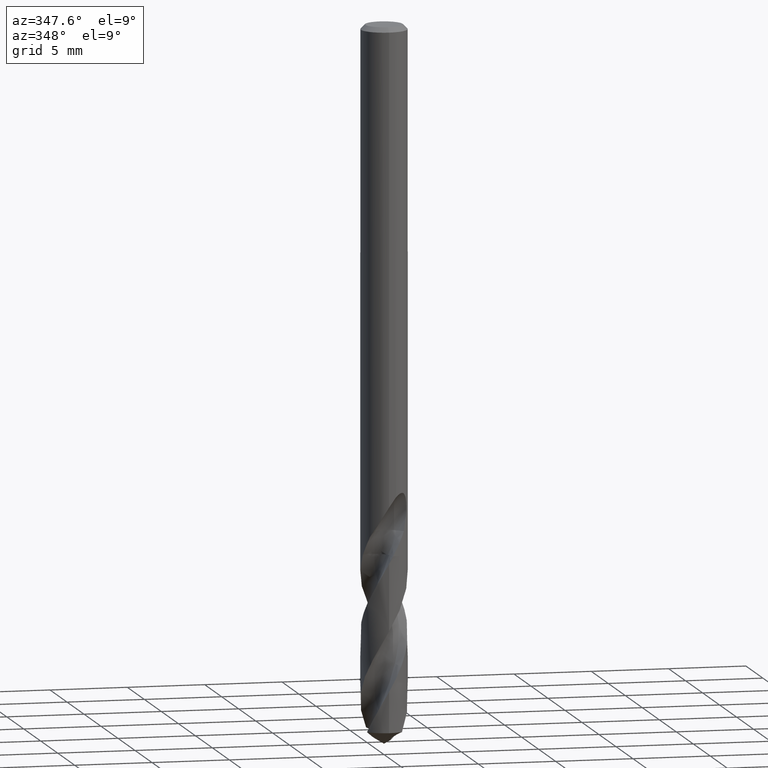
[diagram: clean part render]
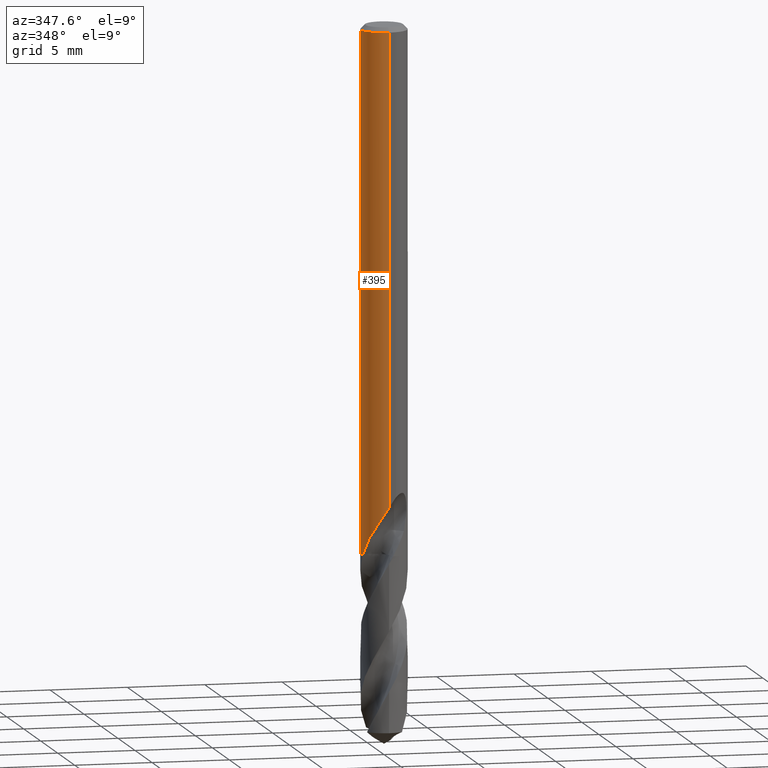
[diagram: same view with one face highlighted and labeled with its STEP entity id]
A machine part, auxiliary view. The second image highlights one B-rep face of the part: STEP entity #395.
In plain terms, the highlighted cylindrical surface (edge-blend (fillet) strip) has radius 1.5 mm, axis along (-0, -0, 1).
Its self-contained STEP definition (entity closure, byte-faithful):
#271=EDGE_CURVE('',#481,#519,#762,.T.);
#285=EDGE_CURVE('',#519,#681,#777,.T.);
#287=EDGE_CURVE('',#393,#661,#779,.T.);
#291=VERTEX_POINT('',#783);
#297=EDGE_CURVE('',#481,#695,#789,.T.);
#301=VERTEX_POINT('',#793);
#323=VERTEX_POINT('',#818);
#333=VERTEX_POINT('',#829);
#341=EDGE_CURVE('',#661,#695,#838,.T.);
#347=VERTEX_POINT('',#844);
#349=EDGE_CURVE('',#533,#323,#846,.T.);
#357=VERTEX_POINT('',#856);
#393=VERTEX_POINT('',#897);
#395=ADVANCED_FACE('',(#899),#900,.T.);
#405=VERTEX_POINT('',#911);
#437=VERTEX_POINT('',#947);
#441=EDGE_CURVE('',#347,#405,#951,.T.);
#449=EDGE_CURVE('',#467,#301,#959,.T.);
#467=VERTEX_POINT('',#977);
#481=VERTEX_POINT('',#993);
#483=EDGE_CURVE('',#405,#393,#995,.T.);
#491=EDGE_CURVE('',#609,#467,#1005,.T.);
#495=EDGE_CURVE('',#291,#437,#1009,.T.);
#513=EDGE_CURVE('',#681,#609,#1028,.T.);
#519=VERTEX_POINT('',#1034);
#533=VERTEX_POINT('',#1049);
#539=EDGE_CURVE('',#301,#357,#1055,.T.);
#609=VERTEX_POINT('',#1132);
#645=EDGE_CURVE('',#357,#533,#1171,.T.);
#649=EDGE_CURVE('',#323,#333,#1176,.T.);
#655=EDGE_CURVE('',#437,#347,#1182,.T.);
#661=VERTEX_POINT('',#1189);
#679=EDGE_CURVE('',#333,#291,#1208,.T.);
#681=VERTEX_POINT('',#1210);
#695=VERTEX_POINT('',#1225);
#762=B_SPLINE_CURVE_WITH_KNOTS('',3,(#1289,#1290,#1291,#1292,#1293,#1294,#1295,#1296),.UNSPECIFIED.,.F.,.F.,(4,2,2,4),(0.0,0.898366519582593,1.48809988664634,2.57980706595048),.UNSPECIFIED.);
#777=B_SPLINE_CURVE_WITH_KNOTS('',3,(#1358,#1359,#1360,#1361,#1362,#1363,#1364,#1365,#1366,#1367,#1368,#1369,#1370,#1371,#1372,#1373,#1374,#1375,#1376,#1377,#1378,#1379,#1380,#1381,#1382,#1383,#1384,#1385),.UNSPECIFIED.,.F.,.F.,(4,2,2,2,2,2,2,2,2,2,2,2,2,4),(0.0,0.734919424519649,1.13620153114086,1.49966231498588,1.92191661966289,2.4291402290594,2.8687597418493,3.06797982700542,3.21358544477763,3.35137095256146,3.52616008675841,3.78188368372509,4.14542484132772,4.55882766017349),.UNSPECIFIED.);
#779=B_SPLINE_CURVE_WITH_KNOTS('',3,(#1388,#1389,#1390,#1391),.UNSPECIFIED.,.F.,.F.,(4,4),(0.0,0.862079850826823),.UNSPECIFIED.);
#783=CARTESIAN_POINT('',(-1.59274549940715E-015,1.5,-21.7128911336578));
#789=CIRCLE('',#1471,1.5);
#793=CARTESIAN_POINT('',(1.07028167063725E-015,1.5,-21.0232688117743));
#818=CARTESIAN_POINT('',(-1.0350734039088,1.08564407082647,-20.3171221986971));
#829=CARTESIAN_POINT('',(1.17859584229481E-016,1.5,-21.5000801551881));
#838=B_SPLINE_CURVE_WITH_KNOTS('',3,(#1737,#1738,#1739,#1740,#1741,#1742,#1743,#1744),.UNSPECIFIED.,.F.,.F.,(4,2,2,4),(0.0,0.363131137481832,0.689911434348051,1.59394428836357),.UNSPECIFIED.);
#844=CARTESIAN_POINT('',(-1.44945831354929E-017,1.5,-23.0310253601033));
#846=CIRCLE('',#1753,1.5);
#856=CARTESIAN_POINT('',(-0.486378944383048,1.4189557859429,-20.6432837483006));
#897=CARTESIAN_POINT('',(-1.22046324492086,0.872049005387456,-31.451629657912));
#899=FACE_OUTER_BOUND('',#2181,.T.);
#900=CYLINDRICAL_SURFACE('',#2182,1.5);
#911=CARTESIAN_POINT('',(-4.4379247726798E-013,1.5,-30.6785266610978));
#947=CARTESIAN_POINT('',(-1.337052752443,0.679919066642939,-22.3720803908795));
#951=LINE('',#2779,#2780);
#959=LINE('',#2790,#2791);
#977=CARTESIAN_POINT('',(0.0,1.5,-0.300000000000001));
#993=CARTESIAN_POINT('',(-1.44637069140941,-0.397507010041174,-33.8));
#995=B_SPLINE_CURVE_WITH_KNOTS('',3,(#2957,#2958,#2959,#2960,#2961,#2962,#2963,#2964,#2965,#2966,#2967,#2968,#2969,#2970,#2971,#2972,#2973,#2974,#2975,#2976,#2977,#2978,#2979,#2980,#2981,#2982,#2983,#2984),.UNSPECIFIED.,.F.,.F.,(4,2,2,2,2,2,2,2,2,2,2,2,2,4),(0.0,0.734919424519641,1.13620153114084,1.49966231498582,1.92191661966277,2.42914022905919,2.868759741849,3.06797982700512,3.21358544477729,3.35137095256106,3.52616008675795,3.78188368372415,4.14542484132553,4.55882766016978),.UNSPECIFIED.);
#1005=CIRCLE('',#3340,1.5);
#1009=ELLIPSE('',#3359,1.67239264806429,1.5);
#1028=LINE('',#3399,#3400);
#1034=CARTESIAN_POINT('',(-0.955826450193441,-1.15602586351284,-32.273));
#1049=CARTESIAN_POINT('',(-0.562333990228013,1.39060435905913,-20.3171221986971));
#1055=B_SPLINE_CURVE_WITH_KNOTS('',3,(#3720,#3721,#3722,#3723,#3724,#3725,#3726,#3727,#3728,#3729,#3730,#3731,#3732,#3733,#3734,#3735,#3736,#3737,#3738,#3739,#3740,#3741,#3742,#3743,#3744,#3745,#3746),.UNSPECIFIED.,.F.,.F.,(4,2,3,2,2,2,2,2,2,2,2,2,4),(-0.555570148161677,-0.277785074080839,0.0,0.277785074080839,0.555570148161677,0.838954672448038,1.1223391967344,1.3938603912747,1.66538158581499,1.94034344792182,2.21530531002864,2.49026717213547,2.76522903424229),.UNSPECIFIED.);
#1132=CARTESIAN_POINT('',(1.83690953073357E-016,-1.5,-0.300000000000001));
#1171=B_SPLINE_CURVE_WITH_KNOTS('',3,(#5048,#5049,#5050,#5051,#5052,#5053,#5054,#5055,#5056,#5057,#5058,#5059,#5060,#5061,#5062,#5063,#5064,#5065,#5066,#5067,#5068,#5069,#5070,#5071,#5072,#5073,#5074),.UNSPECIFIED.,.F.,.F.,(4,2,3,2,2,2,2,2,2,2,2,2,4),(-0.555570148161677,-0.277785074080839,0.0,0.277785074080839,0.555570148161677,0.838954672448038,1.1223391967344,1.3938603912747,1.66538158581499,1.94034344792182,2.21530531002864,2.49026717213547,2.76522903424229),.UNSPECIFIED.);
#1176=B_SPLINE_CURVE_WITH_KNOTS('',3,(#5231,#5232,#5233,#5234,#5235,#5236,#5237,#5238,#5239,#5240,#5241,#5242,#5243,#5244,#5245,#5246,#5247,#5248,#5249,#5250),.UNSPECIFIED.,.F.,.F.,(4,2,2,2,2,2,2,2,2,4),(3.61773460345543,3.85395724262809,4.09017988180075,4.32640252097341,4.79884779931873,5.25384789829177,5.48134794777829,5.7088479972648,5.95533017953676,6.20181236180872),.UNSPECIFIED.);
#1182=B_SPLINE_CURVE_WITH_KNOTS('',3,(#5259,#5260,#5261,#5262,#5263,#5264,#5265,#5266,#5267,#5268,#5269,#5270,#5271,#5272,#5273,#5274),.UNSPECIFIED.,.F.,.F.,(4,2,2,2,2,2,2,4),(0.656882363151586,0.985323544727379,1.31376472630317,1.61579827194463,1.91783181758608,2.21986536322754,2.52189890886899,2.82957976825427),.UNSPECIFIED.);
#1189=CARTESIAN_POINT('',(-1.04261601392358,1.07840245155049,-32.273));
#1208=LINE('',#5442,#5443);
#1210=CARTESIAN_POINT('',(4.44902700292606E-013,-1.5,-30.6785266610978));
#1225=CARTESIAN_POINT('',(-0.274332177781978,1.47470059884486,-33.8));
#1289=CARTESIAN_POINT('',(-1.44637069140941,-0.397507010041172,-33.8));
#1290=CARTESIAN_POINT('',(-1.4067482063125,-0.541677552238742,-33.5405418842532));
#1291=CARTESIAN_POINT('',(-1.34660783622496,-0.676830825675384,-33.2953837203971));
#1292=CARTESIAN_POINT('',(-1.21710188263983,-0.881990667521875,-32.8619443830135));
#1293=CARTESIAN_POINT('',(-1.17348785645097,-0.93523493846504,-32.7289072522091));
#1294=CARTESIAN_POINT('',(-1.09684883912332,-1.0260989460255,-32.5167383413509));
#1295=CARTESIAN_POINT('',(-1.03497201030521,-1.09058665306098,-32.3921053473867));
#1296=CARTESIAN_POINT('',(-0.955826450193442,-1.15602586351284,-32.273));
#1358=CARTESIAN_POINT('',(-0.955826450193442,-1.15602586351284,-32.273));
#1359=CARTESIAN_POINT('',(-0.856880714080365,-1.23783627510982,-32.0643648209938));
#1360=CARTESIAN_POINT('',(-0.743115395704618,-1.31056007068985,-31.8698497401907));
#1361=CARTESIAN_POINT('',(-0.544742531155021,-1.39969826187234,-31.5448988086608));
#1362=CARTESIAN_POINT('',(-0.473358796381456,-1.42533989743551,-31.4305703465191));
#1363=CARTESIAN_POINT('',(-0.33516888827982,-1.46366222849664,-31.2092599492561));
#1364=CARTESIAN_POINT('',(-0.268979746686005,-1.47720142054802,-31.103309612104));
#1365=CARTESIAN_POINT('',(-0.125708112629072,-1.49674184821654,-30.8749583743827));
#1366=CARTESIAN_POINT('',(-0.0474288869669631,-1.50132942011774,-30.75077006207));
#1367=CARTESIAN_POINT('',(0.12640913429535,-1.49767287657042,-30.4850903627386));
#1368=CARTESIAN_POINT('',(0.229477470973733,-1.48636306121171,-30.3339157281609));
#1369=CARTESIAN_POINT('',(0.428231458063886,-1.44068852394289,-30.0846391386798));
#1370=CARTESIAN_POINT('',(0.538194148392213,-1.40589025977158,-29.9630018423218));
#1371=CARTESIAN_POINT('',(0.704621514688883,-1.32545512693772,-29.849100888941));
#1372=CARTESIAN_POINT('',(0.759710000846592,-1.29508905514035,-29.8209514377899));
#1373=CARTESIAN_POINT('',(0.856237705091836,-1.23256455462362,-29.799327587984));
#1374=CARTESIAN_POINT('',(0.895829141852265,-1.20409042289795,-29.7989238040765));
#1375=CARTESIAN_POINT('',(0.969570334630121,-1.14543964779932,-29.8178491174815));
#1376=CARTESIAN_POINT('',(1.00182105452755,-1.11711249050342,-29.8355932949545));
#1377=CARTESIAN_POINT('',(1.06745091261156,-1.0550357310721,-29.8911127993405));
#1378=CARTESIAN_POINT('',(1.09781425610002,-1.02286599079868,-29.9321039737442));
#1379=CARTESIAN_POINT('',(1.16000820300644,-0.952620997760338,-30.0443505497179));
#1380=CARTESIAN_POINT('',(1.1897356693544,-0.914367567158807,-30.1276043439943));
#1381=CARTESIAN_POINT('',(1.24563707432167,-0.837555141191258,-30.3605391888482));
#1382=CARTESIAN_POINT('',(1.2658467294698,-0.804836722556952,-30.5264322515252));
#1383=CARTESIAN_POINT('',(1.27876869102085,-0.784167622639195,-30.923052096235));
#1384=CARTESIAN_POINT('',(1.26961263652255,-0.803262703712318,-31.1720834470048));
#1385=CARTESIAN_POINT('',(1.22046324492086,-0.872049005387455,-31.451629657912));
#1388=CARTESIAN_POINT('',(-1.22046324497347,0.872049005313814,-31.4516296579409));
#1389=CARTESIAN_POINT('',(-1.17210448132609,0.939728795376467,-31.7266871374211));
#1390=CARTESIAN_POINT('',(-1.11381924545134,1.0095620763017,-32.0033814725976));
#1391=CARTESIAN_POINT('',(-1.04261601392358,1.07840245155049,-32.273));
#1471=AXIS2_PLACEMENT_3D('',#6335,#6336,#6337);
#1737=CARTESIAN_POINT('',(-1.04261601392358,1.07840245155049,-32.273));
#1738=CARTESIAN_POINT('',(-1.0013948940739,1.11825566182959,-32.3796026324398));
#1739=CARTESIAN_POINT('',(-0.956589991657523,1.15716787123499,-32.4869305648465));
#1740=CARTESIAN_POINT('',(-0.859583482773508,1.23062504587335,-32.6954116416983));
#1741=CARTESIAN_POINT('',(-0.81086418228851,1.26348538754773,-32.7938125482617));
#1742=CARTESIAN_POINT('',(-0.607898890632892,1.38212774355518,-33.1989850731417));
#1743=CARTESIAN_POINT('',(-0.444564646402217,1.44303298856359,-33.4999363269994));
#1744=CARTESIAN_POINT('',(-0.27433217778195,1.47470059884487,-33.8));
#1753=AXIS2_PLACEMENT_3D('',#6388,#6389,#6390);
#2181=EDGE_LOOP('',(#6452,#6453,#6454,#6455,#6456,#6457,#6458,#6459,#6460,#6461,#6462,#6463,#6464,#6465,#6466,#6467,#6468));
#2182=AXIS2_PLACEMENT_3D('',#6469,#6470,#6471);
#2779=CARTESIAN_POINT('',(-1.83690953073357E-016,1.5,-29.4));
#2780=VECTOR('',#6526,1.0);
#2790=CARTESIAN_POINT('',(-1.83690953073357E-016,1.5,-29.4));
#2791=VECTOR('',#6530,1.0);
#2957=CARTESIAN_POINT('',(0.95582645019344,1.15602586351284,-32.273));
#2958=CARTESIAN_POINT('',(0.856880714080364,1.23783627510982,-32.0643648209938));
#2959=CARTESIAN_POINT('',(0.743115395704616,1.31056007068985,-31.8698497401907));
#2960=CARTESIAN_POINT('',(0.544742531155022,1.39969826187234,-31.5448988086608));
#2961=CARTESIAN_POINT('',(0.473358796381459,1.42533989743551,-31.4305703465191));
#2962=CARTESIAN_POINT('',(0.335168888279825,1.46366222849664,-31.2092599492562));
#2963=CARTESIAN_POINT('',(0.268979746686013,1.47720142054802,-31.103309612104));
#2964=CARTESIAN_POINT('',(0.125708112629069,1.49674184821654,-30.8749583743827));
#2965=CARTESIAN_POINT('',(0.0474288869669627,1.50132942011774,-30.75077006207));
#2966=CARTESIAN_POINT('',(-0.126409134295348,1.49767287657042,-30.4850903627386));
#2967=CARTESIAN_POINT('',(-0.22947747097373,1.48636306121171,-30.3339157281609));
#2968=CARTESIAN_POINT('',(-0.428231458063881,1.44068852394289,-30.0846391386798));
#2969=CARTESIAN_POINT('',(-0.538194148392212,1.40589025977158,-29.9630018423218));
#2970=CARTESIAN_POINT('',(-0.704621514688896,1.32545512693771,-29.849100888941));
#2971=CARTESIAN_POINT('',(-0.759710000846596,1.29508905514035,-29.8209514377899));
#2972=CARTESIAN_POINT('',(-0.85623770509182,1.23256455462363,-29.799327587984));
#2973=CARTESIAN_POINT('',(-0.895829141852259,1.20409042289796,-29.7989238040765));
#2974=CARTESIAN_POINT('',(-0.969570334630121,1.14543964779932,-29.8178491174815));
#2975=CARTESIAN_POINT('',(-1.00182105452755,1.11711249050342,-29.8355932949545));
#2976=CARTESIAN_POINT('',(-1.06745091261156,1.0550357310721,-29.8911127993405));
#2977=CARTESIAN_POINT('',(-1.09781425610002,1.02286599079868,-29.9321039737442));
#2978=CARTESIAN_POINT('',(-1.16000820300638,0.952620997760409,-30.0443505497178));
#2979=CARTESIAN_POINT('',(-1.18973566935435,0.914367567158863,-30.1276043439941));
#2980=CARTESIAN_POINT('',(-1.24563707432168,0.837555141191247,-30.3605391888482));
#2981=CARTESIAN_POINT('',(-1.26584672946981,0.804836722556951,-30.5264322515253));
#2982=CARTESIAN_POINT('',(-1.27876869102085,0.784167622639202,-30.9230520962349));
#2983=CARTESIAN_POINT('',(-1.26961263652257,0.803262703712296,-31.1720834470047));
#2984=CARTESIAN_POINT('',(-1.22046324492086,0.872049005387457,-31.451629657912));
#3340=AXIS2_PLACEMENT_3D('',#6570,#6571,#6572);
#3359=AXIS2_PLACEMENT_3D('',#6573,#6574,#6575);
#3399=CARTESIAN_POINT('',(1.83690953073357E-016,-1.5,-29.4));
#3400=VECTOR('',#6605,1.0);
#3720=CARTESIAN_POINT('',(0.668140181180239,1.34297754943723,-19.816635075886));
#3721=CARTESIAN_POINT('',(0.72954561541178,1.31242794124006,-19.8788438588981));
#3722=CARTESIAN_POINT('',(0.783560352001634,1.27981669553828,-19.9575082882911));
#3723=CARTESIAN_POINT('',(0.856513351014311,1.23218614058296,-20.132478185051));
#3724=CARTESIAN_POINT('',(0.875400981188567,1.21806121444453,-20.2290469878932));
#3725=CARTESIAN_POINT('',(0.875400981188567,1.21806121444453,-20.3216420125868));
#3726=CARTESIAN_POINT('',(0.875400981188567,1.21806121444453,-20.4142370372804));
#3727=CARTESIAN_POINT('',(0.856513351014311,1.23218614058296,-20.5108058401225));
#3728=CARTESIAN_POINT('',(0.783560352001634,1.27981669553828,-20.6857757368825));
#3729=CARTESIAN_POINT('',(0.72954561541178,1.31242794124006,-20.7644401662755));
#3730=CARTESIAN_POINT('',(0.60549696744429,1.37414296109493,-20.8901117053001));
#3731=CARTESIAN_POINT('',(0.52594358793364,1.40783000818906,-20.945820443328));
#3732=CARTESIAN_POINT('',(0.348504567526036,1.46189827571051,-21.0210790623878));
#3733=CARTESIAN_POINT('',(0.250472190188546,1.48195366272155,-21.0405166027747));
#3734=CARTESIAN_POINT('',(0.0665134459332673,1.50125530483568,-21.0405166027747));
#3735=CARTESIAN_POINT('',(-0.0296567030390787,1.50231596180862,-21.0225191030741));
#3736=CARTESIAN_POINT('',(-0.206115087377689,1.48840496513252,-20.9496420023373));
#3737=CARTESIAN_POINT('',(-0.286451100530325,1.47383453037813,-20.8948020659474));
#3738=CARTESIAN_POINT('',(-0.413930554322423,1.44326440842702,-20.7683224497832));
#3739=CARTESIAN_POINT('',(-0.469556401354002,1.42515667708804,-20.6877724765815));
#3740=CARTESIAN_POINT('',(-0.543783863835251,1.3985185002205,-20.5103125850334));
#3741=CARTESIAN_POINT('',(-0.562348199187247,1.39059861314143,-20.4132959666224));
#3742=CARTESIAN_POINT('',(-0.562348199187247,1.39059861314143,-20.2299880585512));
#3743=CARTESIAN_POINT('',(-0.543783863835251,1.3985185002205,-20.1329714401401));
#3744=CARTESIAN_POINT('',(-0.469556401354002,1.42515667708804,-19.9555115485921));
#3745=CARTESIAN_POINT('',(-0.413930554322424,1.44326440842702,-19.8749615753903));
#3746=CARTESIAN_POINT('',(-0.349789520911262,1.45864570443294,-19.8113236082914));
#5048=CARTESIAN_POINT('',(0.668140181180239,1.34297754943723,-19.816635075886));
#5049=CARTESIAN_POINT('',(0.72954561541178,1.31242794124006,-19.8788438588981));
#5050=CARTESIAN_POINT('',(0.783560352001634,1.27981669553828,-19.9575082882911));
#5051=CARTESIAN_POINT('',(0.856513351014311,1.23218614058296,-20.132478185051));
#5052=CARTESIAN_POINT('',(0.875400981188567,1.21806121444453,-20.2290469878932));
#5053=CARTESIAN_POINT('',(0.875400981188567,1.21806121444453,-20.3216420125868));
#5054=CARTESIAN_POINT('',(0.875400981188567,1.21806121444453,-20.4142370372804));
#5055=CARTESIAN_POINT('',(0.856513351014311,1.23218614058296,-20.5108058401225));
#5056=CARTESIAN_POINT('',(0.783560352001634,1.27981669553828,-20.6857757368825));
#5057=CARTESIAN_POINT('',(0.72954561541178,1.31242794124006,-20.7644401662755));
#5058=CARTESIAN_POINT('',(0.60549696744429,1.37414296109493,-20.8901117053001));
#5059=CARTESIAN_POINT('',(0.52594358793364,1.40783000818906,-20.945820443328));
#5060=CARTESIAN_POINT('',(0.348504567526036,1.46189827571051,-21.0210790623878));
#5061=CARTESIAN_POINT('',(0.250472190188546,1.48195366272155,-21.0405166027747));
#5062=CARTESIAN_POINT('',(0.0665134459332673,1.50125530483568,-21.0405166027747));
#5063=CARTESIAN_POINT('',(-0.0296567030390787,1.50231596180862,-21.0225191030741));
#5064=CARTESIAN_POINT('',(-0.206115087377689,1.48840496513252,-20.9496420023373));
#5065=CARTESIAN_POINT('',(-0.286451100530325,1.47383453037813,-20.8948020659474));
#5066=CARTESIAN_POINT('',(-0.413930554322423,1.44326440842702,-20.7683224497832));
#5067=CARTESIAN_POINT('',(-0.469556401354002,1.42515667708804,-20.6877724765815));
#5068=CARTESIAN_POINT('',(-0.543783863835251,1.3985185002205,-20.5103125850334));
#5069=CARTESIAN_POINT('',(-0.562348199187247,1.39059861314143,-20.4132959666224));
#5070=CARTESIAN_POINT('',(-0.562348199187247,1.39059861314143,-20.2299880585512));
#5071=CARTESIAN_POINT('',(-0.543783863835251,1.3985185002205,-20.1329714401401));
#5072=CARTESIAN_POINT('',(-0.469556401354002,1.42515667708804,-19.9555115485921));
#5073=CARTESIAN_POINT('',(-0.413930554322424,1.44326440842702,-19.8749615753903));
#5074=CARTESIAN_POINT('',(-0.349789520911262,1.45864570443294,-19.8113236082914));
#5231=CARTESIAN_POINT('',(-1.01123770892783,1.10788009100371,-20.0898428465587));
#5232=CARTESIAN_POINT('',(-1.02715094659726,1.09335499511718,-20.1678544821019));
#5233=CARTESIAN_POINT('',(-1.03510901790186,1.08561011466283,-20.2475609810086));
#5234=CARTESIAN_POINT('',(-1.03510901790186,1.08561011466283,-20.405042740457));
#5235=CARTESIAN_POINT('',(-1.02715094659727,1.09335499511718,-20.4847492393637));
#5236=CARTESIAN_POINT('',(-0.995324471258397,1.12240518689025,-20.64077251045));
#5237=CARTESIAN_POINT('',(-0.971476254759974,1.14359380025859,-20.7171151052056));
#5238=CARTESIAN_POINT('',(-0.878799424638418,1.21819626178867,-20.9348246281265));
#5239=CARTESIAN_POINT('',(-0.787799951048171,1.28194518581036,-21.0651557739127));
#5240=CARTESIAN_POINT('',(-0.580862453220032,1.38765821703569,-21.2690537797624));
#5241=CARTESIAN_POINT('',(-0.451254909174859,1.43810095908109,-21.3583203225889));
#5242=CARTESIAN_POINT('',(-0.234638137082626,1.48336991291967,-21.4485251649733));
#5243=CARTESIAN_POINT('',(-0.158756473505118,1.4935560222756,-21.4715967344684));
#5244=CARTESIAN_POINT('',(-0.00519151045667908,1.50196080434295,-21.5020226044467));
#5245=CARTESIAN_POINT('',(0.0724942156845488,1.50016508612837,-21.5093686300866));
#5246=CARTESIAN_POINT('',(0.229717808295382,1.48458078718634,-21.5093686300866));
#5247=CARTESIAN_POINT('',(0.312170977089979,1.46950282762401,-21.500774090616));
#5248=CARTESIAN_POINT('',(0.472396982425651,1.42608918730169,-21.4669552645128));
#5249=CARTESIAN_POINT('',(0.550176752260779,1.39776510746986,-21.4417489377523));
#5250=CARTESIAN_POINT('',(0.62318254719967,1.36442057770532,-21.409726234769));
#5259=CARTESIAN_POINT('',(-1.37998432118956,0.587914341780333,-22.3112692902851));
#5260=CARTESIAN_POINT('',(-1.3420187927796,0.677031105684867,-22.367742000234));
#5261=CARTESIAN_POINT('',(-1.29552710671502,0.762160552391982,-22.4289638354046));
#5262=CARTESIAN_POINT('',(-1.18739688452769,0.921611538394464,-22.5496702342709));
#5263=CARTESIAN_POINT('',(-1.12571460502269,0.995864518486346,-22.6092061584419));
#5264=CARTESIAN_POINT('',(-0.99683873257529,1.12423580420845,-22.7144597063823));
#5265=CARTESIAN_POINT('',(-0.926200605330785,1.18371601339253,-22.7644681671771));
#5266=CARTESIAN_POINT('',(-0.769406154596547,1.29114109676327,-22.8557531235434));
#5267=CARTESIAN_POINT('',(-0.683234987830561,1.33908204140926,-22.8970087462345));
#5268=CARTESIAN_POINT('',(-0.499897730684779,1.4177634331103,-22.9645767271564));
#5269=CARTESIAN_POINT('',(-0.402498520356948,1.44857835781097,-22.9909473368275));
#5270=CARTESIAN_POINT('',(-0.20288430631457,1.48970543263052,-23.0250573425345));
#5271=CARTESIAN_POINT('',(-0.100662581590227,1.5,-23.0327786015796));
#5272=CARTESIAN_POINT('',(0.102544734048809,1.5,-23.0292393371535));
#5273=CARTESIAN_POINT('',(0.206197625002642,1.48932559621363,-23.0175826358192));
#5274=CARTESIAN_POINT('',(0.307013263411802,1.46824482157753,-22.9963679704669));
#5442=CARTESIAN_POINT('',(-1.83690953073357E-016,1.5,-29.4));
#5443=VECTOR('',#6764,1.0);
#6335=CARTESIAN_POINT('',(0.0,0.0,-33.8));
#6336=DIRECTION('',(0.0,0.0,-1.0));
#6337=DIRECTION('',(0.0,1.0,0.0));
#6388=CARTESIAN_POINT('',(0.0,0.0,-20.3171221986971));
#6389=DIRECTION('',(0.0,-0.0,1.0));
#6390=DIRECTION('',(0.0,1.0,0.0));
#6452=ORIENTED_EDGE('',*,*,#449,.T.);
#6453=ORIENTED_EDGE('',*,*,#539,.T.);
#6454=ORIENTED_EDGE('',*,*,#645,.T.);
#6455=ORIENTED_EDGE('',*,*,#349,.T.);
#6456=ORIENTED_EDGE('',*,*,#649,.T.);
#6457=ORIENTED_EDGE('',*,*,#679,.T.);
#6458=ORIENTED_EDGE('',*,*,#495,.T.);
#6459=ORIENTED_EDGE('',*,*,#655,.T.);
#6460=ORIENTED_EDGE('',*,*,#441,.T.);
#6461=ORIENTED_EDGE('',*,*,#483,.T.);
#6462=ORIENTED_EDGE('',*,*,#287,.T.);
#6463=ORIENTED_EDGE('',*,*,#341,.T.);
#6464=ORIENTED_EDGE('',*,*,#297,.F.);
#6465=ORIENTED_EDGE('',*,*,#271,.T.);
#6466=ORIENTED_EDGE('',*,*,#285,.T.);
#6467=ORIENTED_EDGE('',*,*,#513,.T.);
#6468=ORIENTED_EDGE('',*,*,#491,.T.);
#6469=CARTESIAN_POINT('',(0.0,0.0,-29.4));
#6470=DIRECTION('',(-0.0,-0.0,1.0));
#6471=DIRECTION('',(0.0,1.0,0.0));
#6526=DIRECTION('',(0.0,0.0,-1.0));
#6530=DIRECTION('',(0.0,0.0,-1.0));
#6570=CARTESIAN_POINT('',(0.0,0.0,-0.300000000000001));
#6571=DIRECTION('',(0.0,0.0,-1.0));
#6572=DIRECTION('',(0.0,1.0,0.0));
#6573=CARTESIAN_POINT('',(0.0,0.0,-21.7128911336578));
#6574=DIRECTION('',(-0.442195774284071,0.0,0.896918556617774));
#6575=DIRECTION('',(0.896918556617774,-0.0,0.442195774284071));
#6605=DIRECTION('',(-0.0,-0.0,1.0));
#6764=DIRECTION('',(0.0,0.0,-1.0));